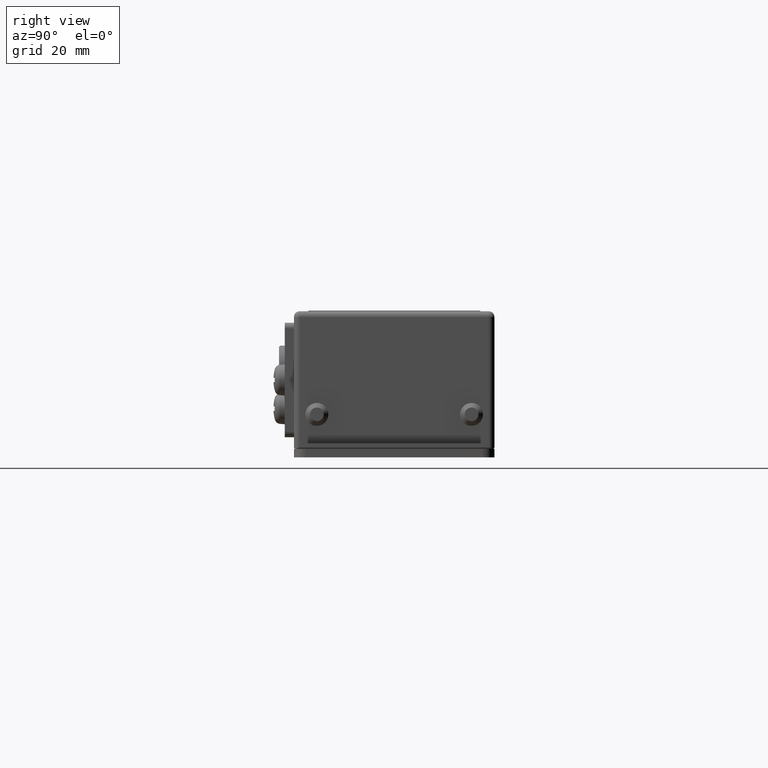
[diagram: clean part render]
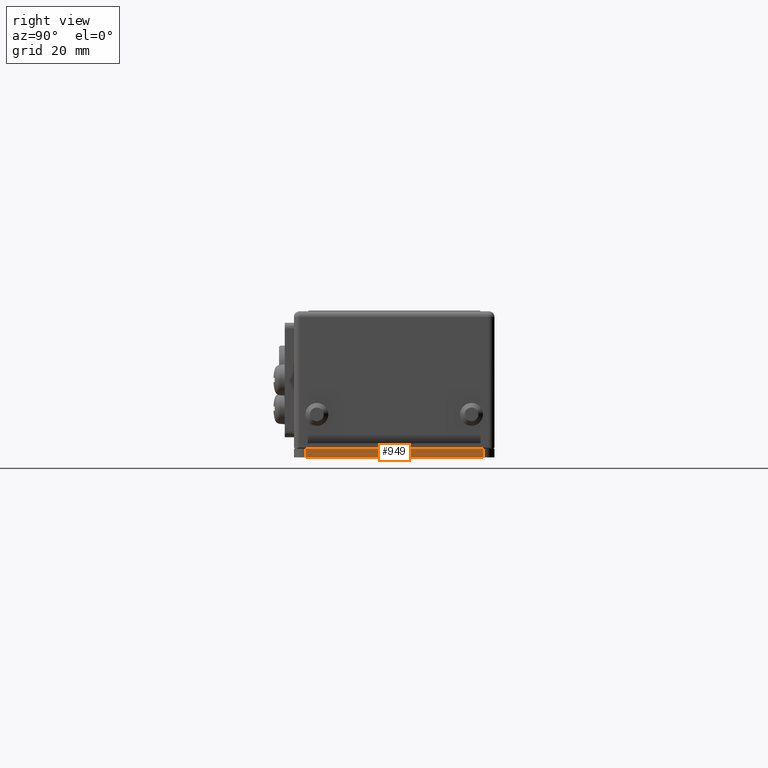
[diagram: same view with one face highlighted and labeled with its STEP entity id]
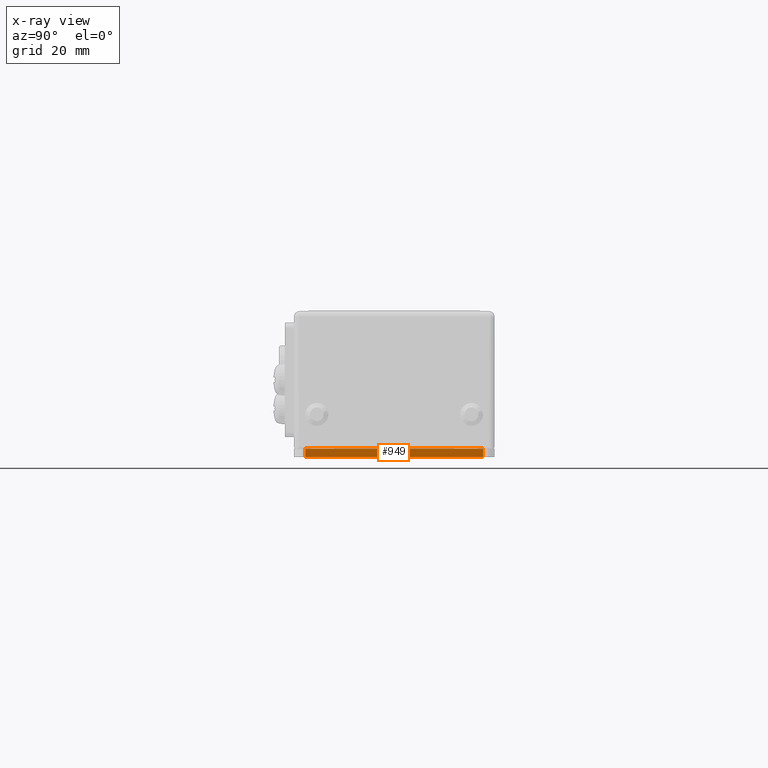
[diagram: x-ray of the same camera — body ghosted, the highlighted face saturated]
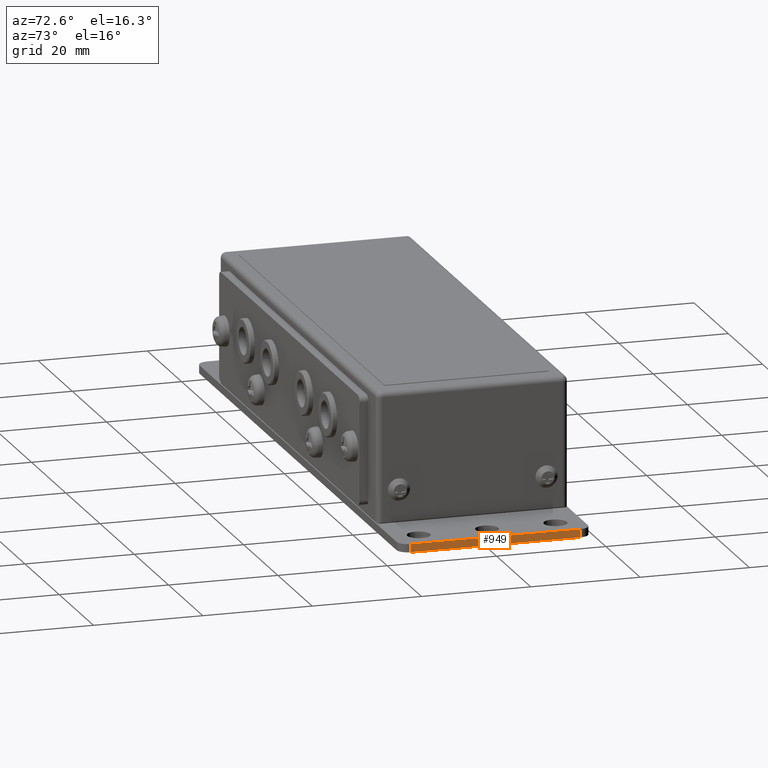
[diagram: same view with one face highlighted and labeled with its STEP entity id]
A machine part, right view. The second image highlights one B-rep face of the part: STEP entity #949.
The next image is the same camera in x-ray: the body ghosted, the highlighted face saturated — about 0% of this face is hidden behind the body in this view.
A second angle (auxiliary view) of the same face is appended — the face is thin or edge-on in the first view.
In plain terms, the highlighted planar face has unit normal (-1, 0, 0).
Its self-contained STEP definition (entity closure, byte-faithful):
#949 = ADVANCED_FACE( '', ( #2050 ), #2051, .F. );
#2050 = FACE_OUTER_BOUND( '', #3171, .T. );
#2051 = PLANE( '', #3172 );
#3171 = EDGE_LOOP( '', ( #5713, #5714, #5715, #5716 ) );
#3172 = AXIS2_PLACEMENT_3D( '', #5717, #5718, #5719 );
#5713 = ORIENTED_EDGE( '', *, *, #6334, .T. );
#5714 = ORIENTED_EDGE( '', *, *, #6588, .F. );
#5715 = ORIENTED_EDGE( '', *, *, #6401, .F. );
#5716 = ORIENTED_EDGE( '', *, *, #6640, .T. );
#5717 = CARTESIAN_POINT( '', ( 59.5000000000000, 15.5000000000000, -25.5000000000000 ) );
#5718 = DIRECTION( '', ( -1.00000000000000, 0.000000000000000, 0.000000000000000 ) );
#5719 = DIRECTION( '', ( 0.000000000000000, 1.00000000000000, 0.000000000000000 ) );
#6334 = EDGE_CURVE( '', #7638, #7636, #7639, .T. );
#6401 = EDGE_CURVE( '', #7741, #7743, #7744, .T. );
#6588 = EDGE_CURVE( '', #7743, #7636, #8014, .T. );
#6640 = EDGE_CURVE( '', #7741, #7638, #8085, .T. );
#7636 = VERTEX_POINT( '', #9353 );
#7638 = VERTEX_POINT( '', #9355 );
#7639 = LINE( '', #9356, #9357 );
#7741 = VERTEX_POINT( '', #9486 );
#7743 = VERTEX_POINT( '', #9488 );
#7744 = LINE( '', #9489, #9490 );
#8014 = LINE( '', #9865, #9866 );
#8085 = LINE( '', #9952, #9953 );
#9353 = CARTESIAN_POINT( '', ( 59.5000000000000, -15.5000000000000, -24.0000000000000 ) );
#9355 = CARTESIAN_POINT( '', ( 59.5000000000000, 15.5000000000000, -24.0000000000000 ) );
#9356 = CARTESIAN_POINT( '', ( 59.5000000000000, 15.5000000000000, -24.0000000000000 ) );
#9357 = VECTOR( '', #10944, 1000.00000000000 );
#9486 = CARTESIAN_POINT( '', ( 59.5000000000000, 15.5000000000000, -25.5000000000000 ) );
#9488 = CARTESIAN_POINT( '', ( 59.5000000000000, -15.5000000000000, -25.5000000000000 ) );
#9489 = CARTESIAN_POINT( '', ( 59.5000000000000, 15.5000000000000, -25.5000000000000 ) );
#9490 = VECTOR( '', #11041, 1000.00000000000 );
#9865 = CARTESIAN_POINT( '', ( 59.5000000000000, -15.5000000000000, -25.5000000000000 ) );
#9866 = VECTOR( '', #11259, 1000.00000000000 );
#9952 = CARTESIAN_POINT( '', ( 59.5000000000000, 15.5000000000000, -25.5000000000000 ) );
#9953 = VECTOR( '', #11323, 1000.00000000000 );
#10944 = DIRECTION( '', ( 0.000000000000000, -1.00000000000000, 0.000000000000000 ) );
#11041 = DIRECTION( '', ( 0.000000000000000, -1.00000000000000, 0.000000000000000 ) );
#11259 = DIRECTION( '', ( -0.000000000000000, -0.000000000000000, 1.00000000000000 ) );
#11323 = DIRECTION( '', ( -0.000000000000000, -0.000000000000000, 1.00000000000000 ) );